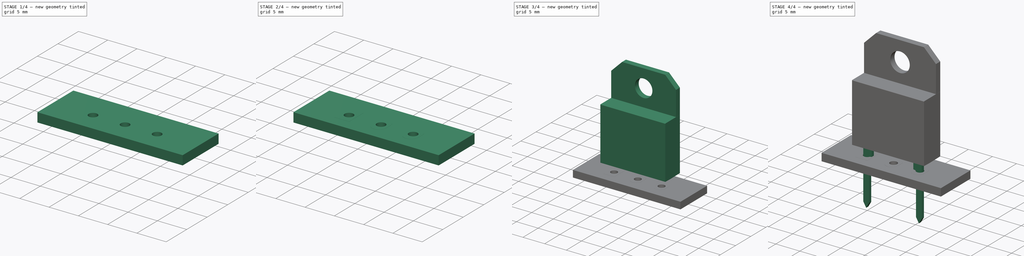
[diagram: build sequence overview — one tinted view per stage of 4, left to right]
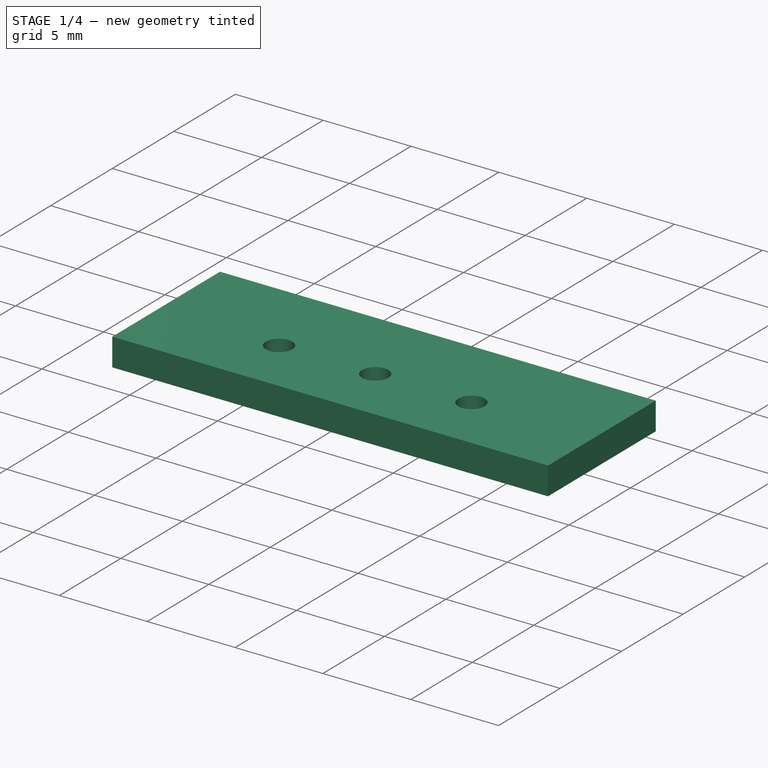
[diagram: stage 1 of 4 — iso view after this stage's code; geometry added in this stage tinted green]
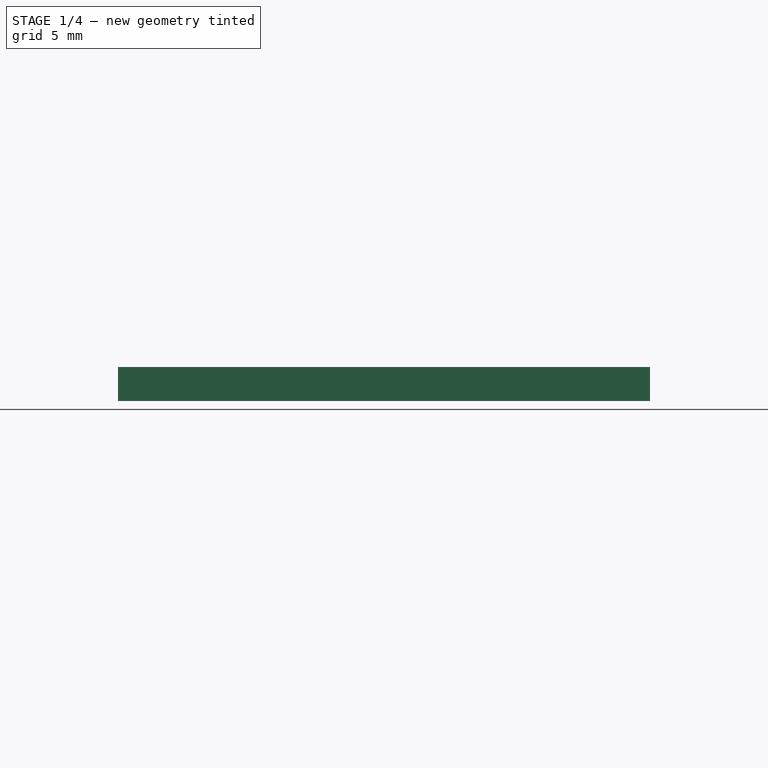
[diagram: stage 1 of 4 — front view after this stage's code; geometry added in this stage tinted green]
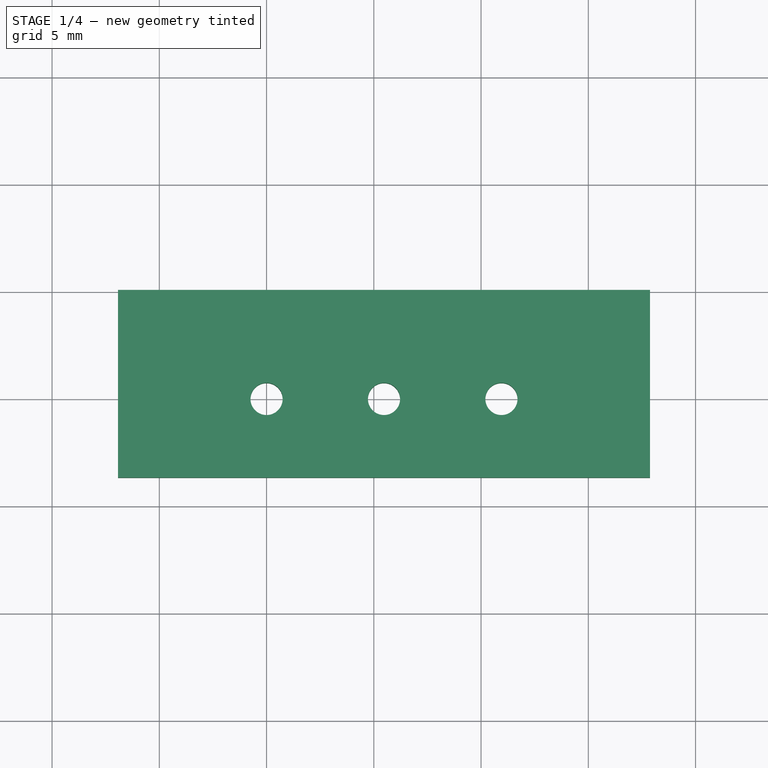
[diagram: stage 1 of 4 — top view after this stage's code; geometry added in this stage tinted green]
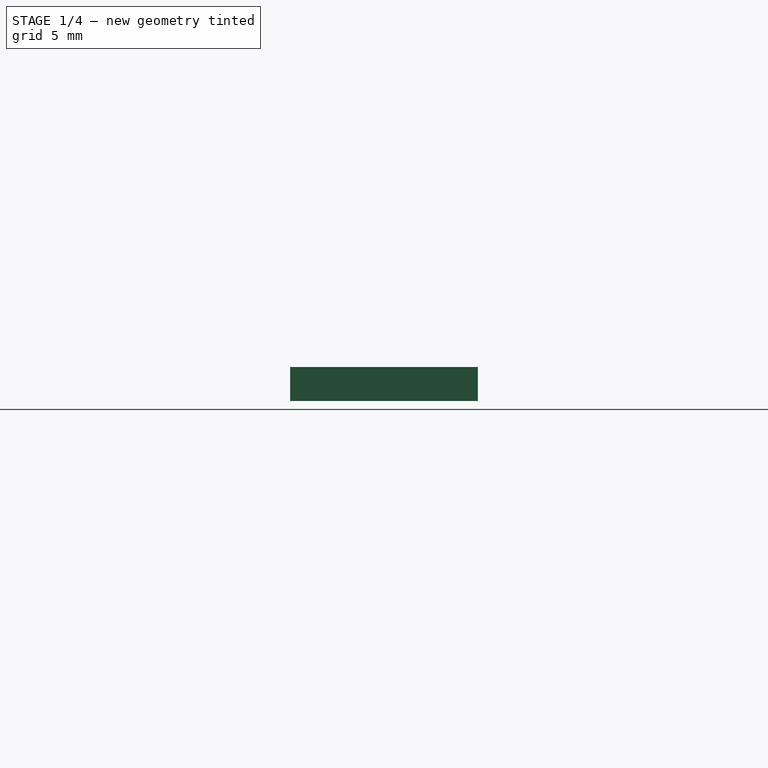
[diagram: stage 1 of 4 — right view after this stage's code; geometry added in this stage tinted green]
FCSTD DOCUMENT  (FreeCAD 0.16R6712 (Git))
Label: TO-218-2_Vertical
License: All rights reserved
LicenseURL: http://en.wikipedia.org/wiki/All_rights_reserved
objects: Part::FeaturePython×7, Sketcher::SketchObject×4, PartDesign::Pad×3, PartDesign::Pocket×1, Part::MultiFuse×1, App::DocumentObjectGroup×1
note: 20 computed .brp shape members not serialized (recipe doc carries the construction recipe); baked Part::Feature solids carry a one-line shape summary decoded from their .brp

FEATURE [Part::FeaturePython] THPs  label="PTHs"  # a2plus imported part (geometry in sourceFile) (typed FeaturePython)
  fixedPosition = true
FEATURE [Part::FeaturePython] newPCB  label="Pcb"  # a2plus imported part (geometry in sourceFile) (typed FeaturePython)
  fixedPosition = true
FEATURE [App::DocumentObjectGroup] TO_218_3_Vertical_fp
  Group = -> [FCrtYd_lines,FFab_lines,Filk_lines,TopPads,BotPads,THPs,newPCB]
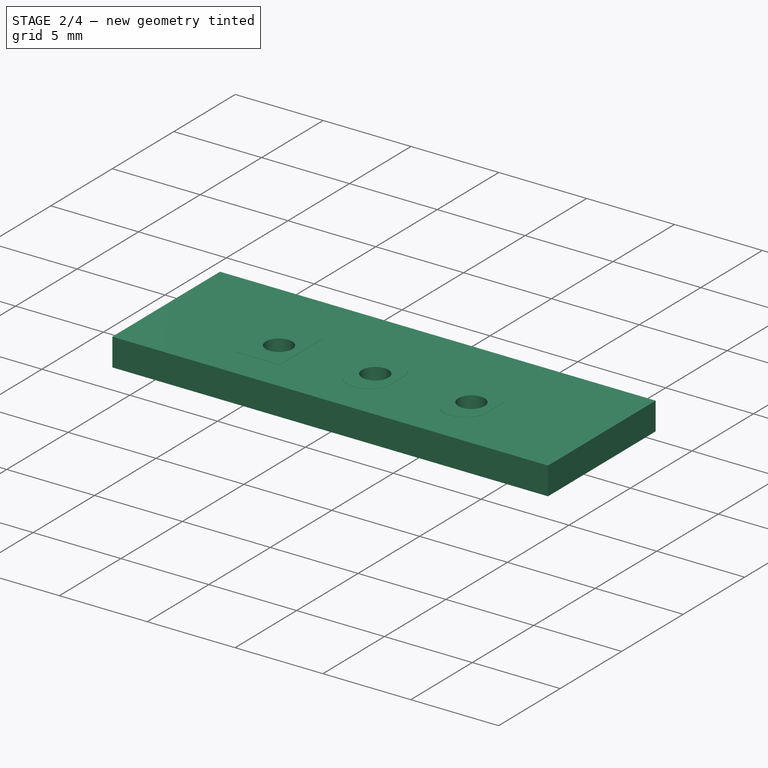
[diagram: stage 2 of 4 — iso view after this stage's code; geometry added in this stage tinted green]
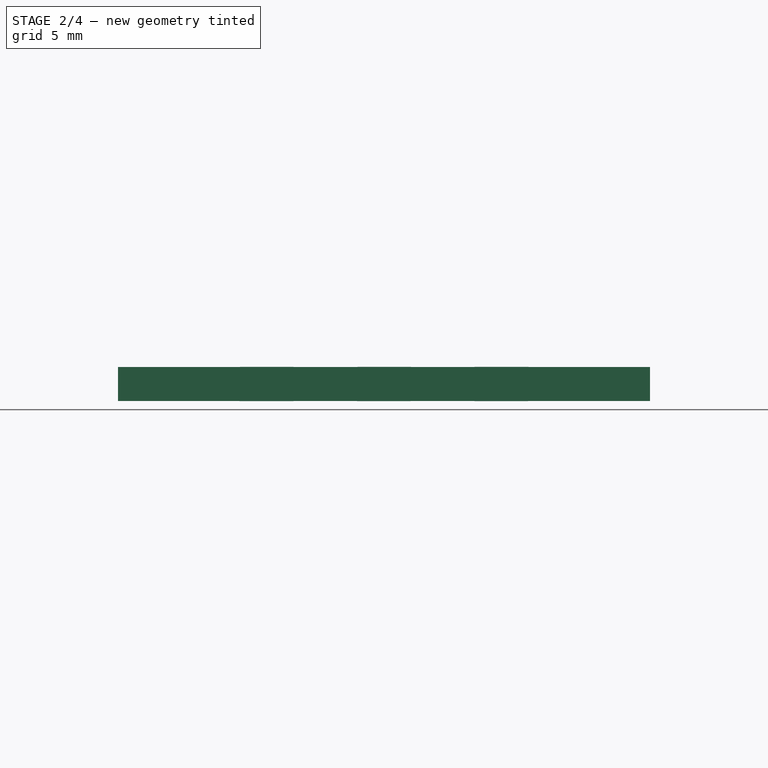
[diagram: stage 2 of 4 — front view after this stage's code; geometry added in this stage tinted green]
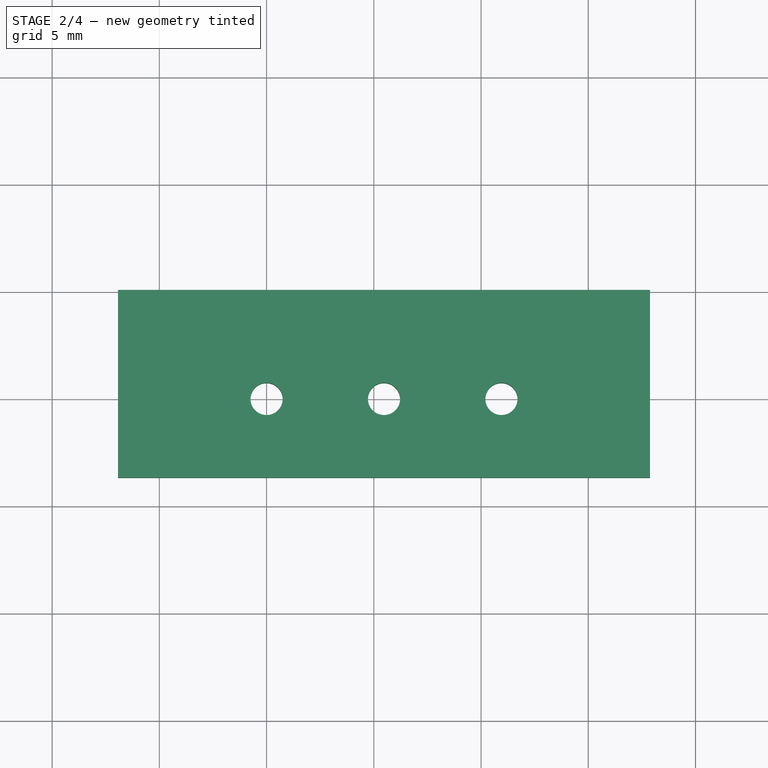
[diagram: stage 2 of 4 — top view after this stage's code; geometry added in this stage tinted green]
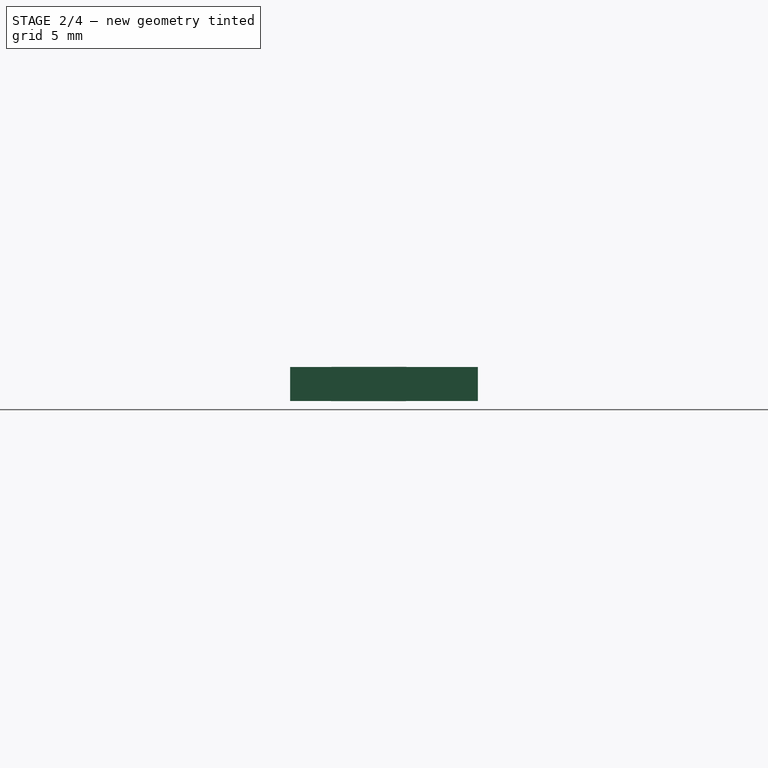
[diagram: stage 2 of 4 — right view after this stage's code; geometry added in this stage tinted green]
FEATURE [Part::FeaturePython] FCrtYd_lines  label="FCrtYd"  # a2plus imported part (geometry in sourceFile) (typed FeaturePython)
  fixedPosition = true
FEATURE [Part::FeaturePython] FFab_lines  label="FFab"  # a2plus imported part (geometry in sourceFile) (typed FeaturePython)
  fixedPosition = true
FEATURE [Part::FeaturePython] Filk_lines  label="FrontSilk"  # a2plus imported part (geometry in sourceFile) (typed FeaturePython)
  fixedPosition = true
FEATURE [Part::FeaturePython] TopPads  # a2plus imported part (geometry in sourceFile) (typed FeaturePython)
  fixedPosition = true
FEATURE [Part::FeaturePython] BotPads  # a2plus imported part (geometry in sourceFile) (typed FeaturePython)
  fixedPosition = true
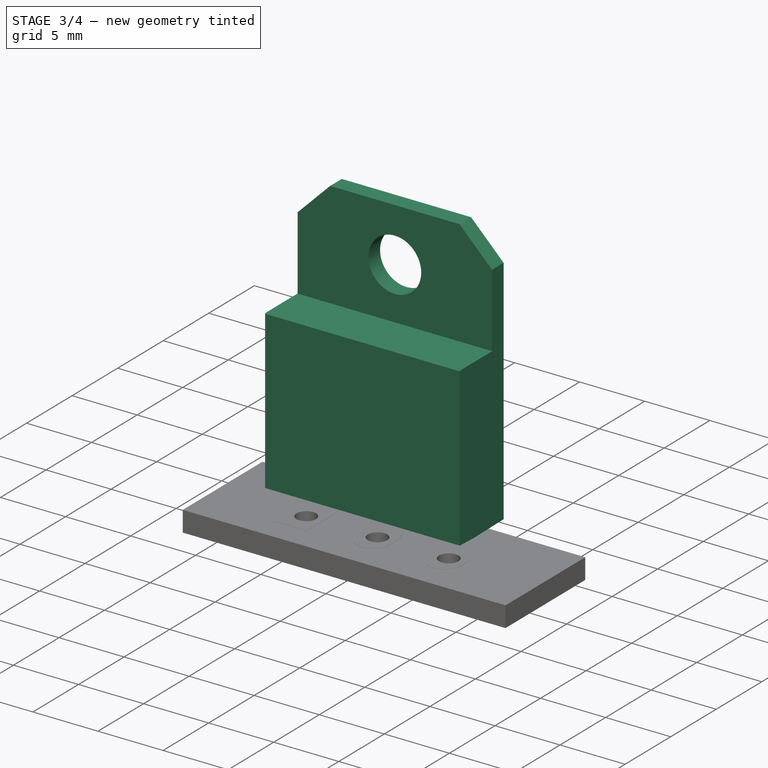
[diagram: stage 3 of 4 — iso view after this stage's code; geometry added in this stage tinted green]
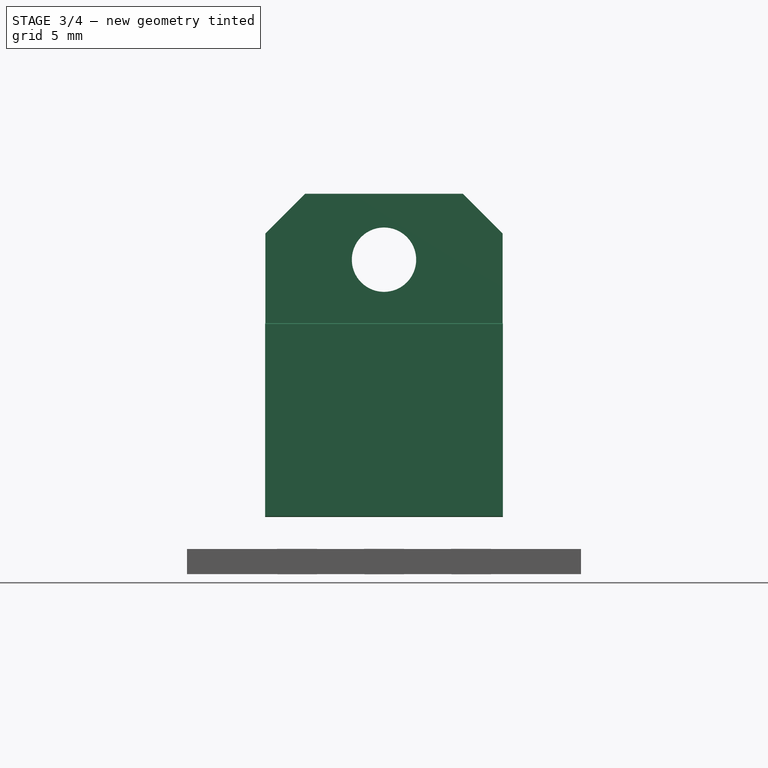
[diagram: stage 3 of 4 — front view after this stage's code; geometry added in this stage tinted green]
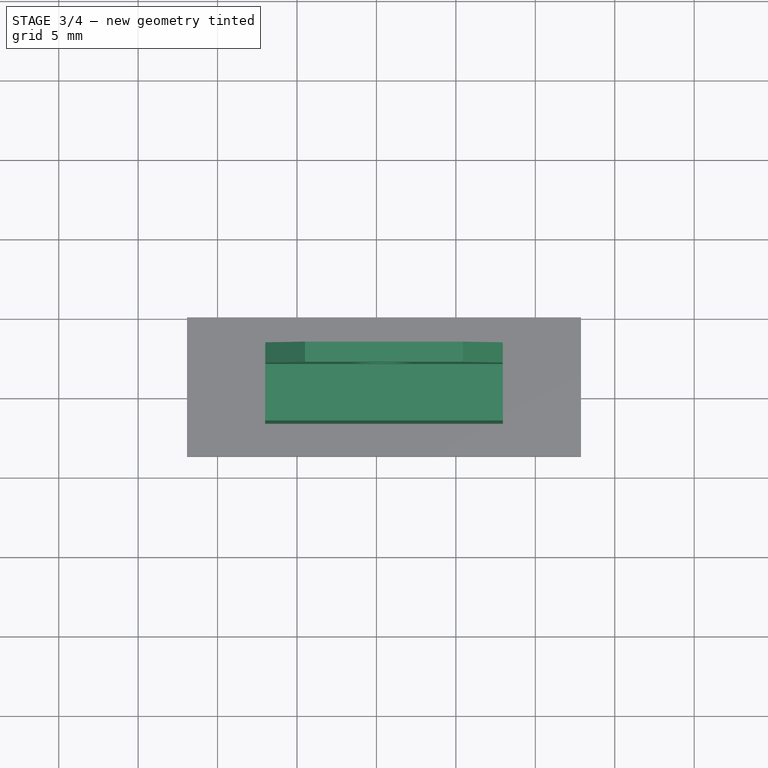
[diagram: stage 3 of 4 — top view after this stage's code; geometry added in this stage tinted green]
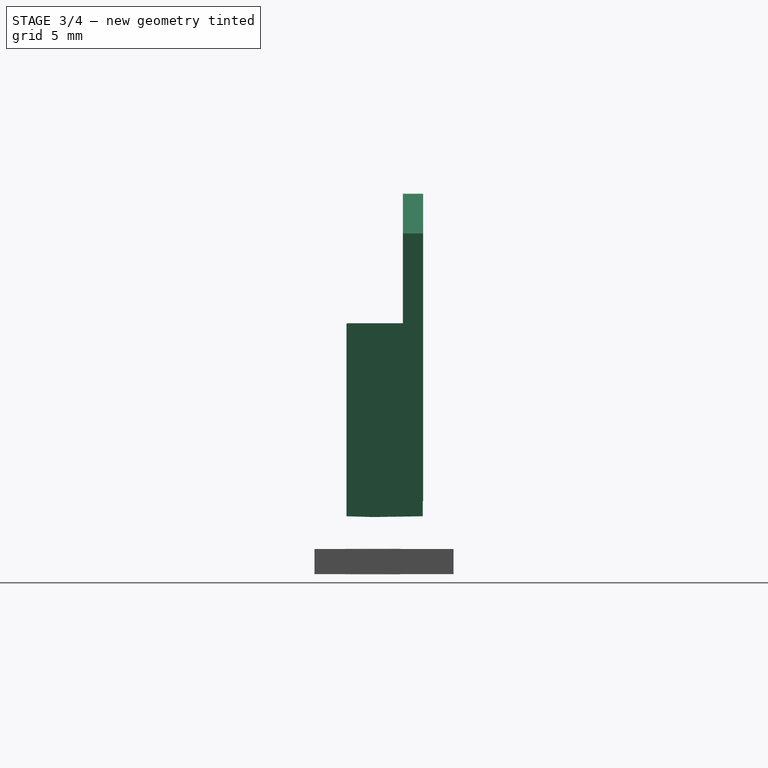
[diagram: stage 3 of 4 — right view after this stage's code; geometry added in this stage tinted green]
FEATURE [Sketcher::SketchObject] Sketch001
  Placement = pos=(5.475,0,0) rot=(0.57735,0.57735,0.57735;2.0944rad)
  expr: Constraints[13] = (2.92 + 2.41) / 2 + (0.61 + 0.36) / 2
  sketch-geometry (7):
    g0: LineSegment StartX=0 StartY=2 StartZ=0 EndX=-1.65 EndY=2.05 EndZ=0
    g1: LineSegment StartX=-1.65 StartY=2.05 StartZ=0 EndX=-1.65 EndY=14.15 EndZ=0
    g2: LineSegment StartX=-1.65 StartY=14.15 StartZ=0 EndX=-1.6 EndY=14.2 EndZ=0
    g3: LineSegment StartX=-1.6 StartY=14.2 StartZ=0 EndX=3.15 EndY=14.2 EndZ=0
    g4: LineSegment StartX=3.15 StartY=14.2 StartZ=0 EndX=3.15 EndY=2.05 EndZ=0
    g5: LineSegment StartX=3.15 StartY=2.05 StartZ=0 EndX=0 EndY=2 EndZ=0
    g6: LineSegment [constr] StartX=-1.65 StartY=2.05 StartZ=0 EndX=3.15 EndY=2.05 EndZ=0
  constraints (20):
    c: PointOnObject(g0,g-2)
    c: Coincident(g1,g0)
    c: Vertical(g1)
    c: Coincident(g2,g1)
    c: Horizontal(g3)
    c: Coincident(g4,g3)
    c: Vertical(g4)
    c: Coincident(g5,g4)
    c: Coincident(g5,g0)
    c: Coincident(g6,g0)
    c: Coincident(g6,g4)
    c: Horizontal(g6)
    c: Angle(g1,g2) = 2.35619
    c: DistanceX(g0,g4) = 3.15
    c: DistanceX(g1,g3) = 4.8
    c: DistanceY(g0,g4) = 0.05
    c: DistanceY(g0,g3) = 12.2
    c: Coincident(g2,g3)
    c: DistanceX(g1,g2) = 0.05
    c: DistanceY(g-1,g0) = 2
FEATURE [PartDesign::Pad] Pad001
  Length = 14.96
  Length2 = 100
  Midplane = true
  Placement = pos=(5.475,0,0) rot=(0.57735,0.57735,0.57735;2.0944rad)
  Sketch = -> Sketch001
  Type = 0
  expr: Length = (14.7 + 15.2) / 2 + 0.01
FEATURE [Sketcher::SketchObject] Sketch004
  Placement = pos=(0,0,3) rot=(0,0,1;0rad)
  expr: Constraints[13] = (5.4 + 5.55) / 2
  expr: Constraints[10] = 2.5 + (0.5 + 0.78) / 2 + 0.03
  expr: Constraints[9] = (1.17 + 1.37) / 2
  expr: Constraints[8] = (14.7 + 15.2) / 2 - 0.01
  sketch-geometry (5):
    g0: LineSegment StartX=-1.995 StartY=3.17 StartZ=0 EndX=12.945 EndY=3.17 EndZ=0
    g1: LineSegment StartX=12.945 StartY=3.17 StartZ=0 EndX=12.945 EndY=1.9 EndZ=0
    g2: LineSegment StartX=12.945 StartY=1.9 StartZ=0 EndX=-1.995 EndY=1.9 EndZ=0
    g3: LineSegment StartX=-1.995 StartY=1.9 StartZ=0 EndX=-1.995 EndY=3.17 EndZ=0
    g4: LineSegment [constr] StartX=0 StartY=3.17 StartZ=0 EndX=5.475 EndY=3.17 EndZ=0
  constraints (15):
    c: Coincident(g0,g1)
    c: Coincident(g1,g2)
    c: Coincident(g2,g3)
    c: Coincident(g3,g0)
    c: Horizontal(g0)
    c: Horizontal(g2)
    c: Vertical(g1)
    c: Vertical(g3)
    c: DistanceX(g0,g0) = 14.94
    c: DistanceY(g3,g3) = 1.27
    c: DistanceY(g-1,g0) = 3.17
    c: PointOnObject(g4,g-2)
    c: Horizontal(g4)
    c: DistanceX(g4,g4) = 5.475
    c: Symmetric(g0,g0,g4)
FEATURE [PartDesign::Pad] Pad002
  Length = 19.35
  Length2 = 100
  Placement = pos=(0,0,3) rot=(0,0,1;0rad)
  Sketch = -> Sketch004
  Type = 0
FEATURE [Sketcher::SketchObject] Sketch005
  ExternalGeometry = -> [Pad002]
  Placement = pos=(0,1.9,3) rot=(1,0,0;1.5708rad)
  Support = -> Pad002 [Face3]
  expr: Constraints[1] = 4.05 / 2
  expr: Constraints[2] = 20.35 - 16.2
  sketch-geometry (7):
    g0: Circle CenterX=5.475 CenterY=15.2 CenterZ=0 NormalX=0 NormalY=0 NormalZ=1 Radius=2.025
    g1: LineSegment StartX=0.505 StartY=19.35 StartZ=0 EndX=-1.995 EndY=16.85 EndZ=0
    g2: LineSegment StartX=-1.995 StartY=16.85 StartZ=0 EndX=-1.995 EndY=19.35 EndZ=0
    g3: LineSegment StartX=-1.995 StartY=19.35 StartZ=0 EndX=0.505 EndY=19.35 EndZ=0
    g4: LineSegment StartX=10.445 StartY=19.35 StartZ=0 EndX=12.945 EndY=16.85 EndZ=0
    g5: LineSegment StartX=12.945 StartY=16.85 StartZ=0 EndX=12.945 EndY=19.35 EndZ=0
    g6: LineSegment StartX=12.945 StartY=19.35 StartZ=0 EndX=10.445 EndY=19.35 EndZ=0
  constraints (20):
    c: DistanceX(g-1,g0) = 5.475
    c: Radius(g0) = 2.025
    c: DistanceY(g0,g-3) = 4.15
    c: PointOnObject(g1,g-3)
    c: Coincident(g2,g1)
    c: Coincident(g2,g-3)
    c: Vertical(g2)
    c: Coincident(g3,g2)
    c: Coincident(g3,g1)
    c: Angle(g1,g-3) = 2.35619
    c: DistanceY(g2,g2) = 2.5
    c: PointOnObject(g4,g-3)
    c: Coincident(g5,g4)
    c: Coincident(g5,g-3)
    c: Vertical(g5)
    c: Coincident(g6,g5)
    c: PointOnObject(g6,g-3)
    c: Coincident(g4,g6)
    c: Equal(g5,g2)
    c: Angle(g5,g4) = 0.785398
FEATURE [PartDesign::Pocket] Pocket
  Length = 5
  Placement = pos=(0,0,3) rot=(0,0,1;0rad)
  Sketch = -> Sketch005
  Type = 1
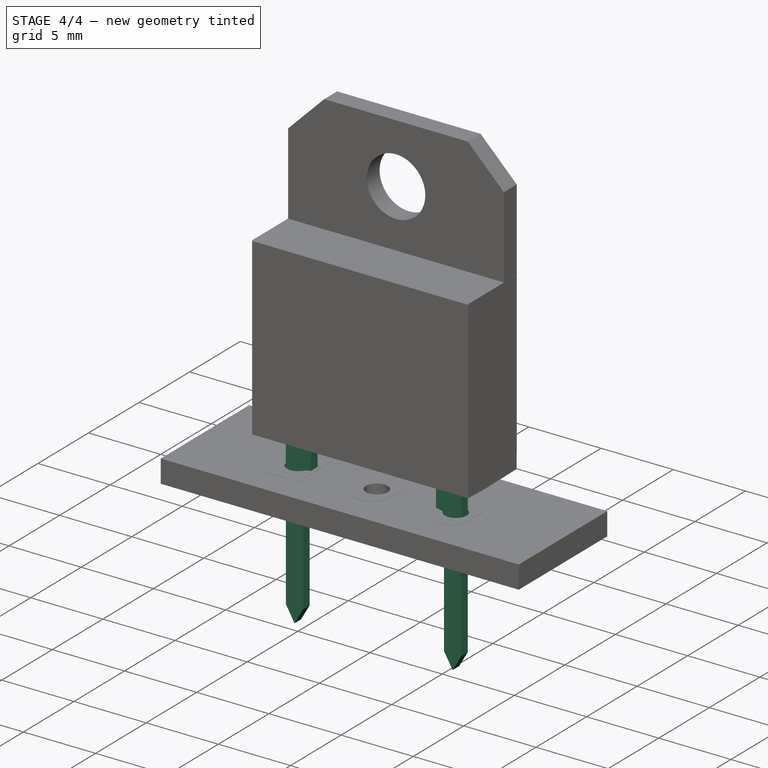
[diagram: stage 4 of 4 — iso view after this stage's code; geometry added in this stage tinted green]
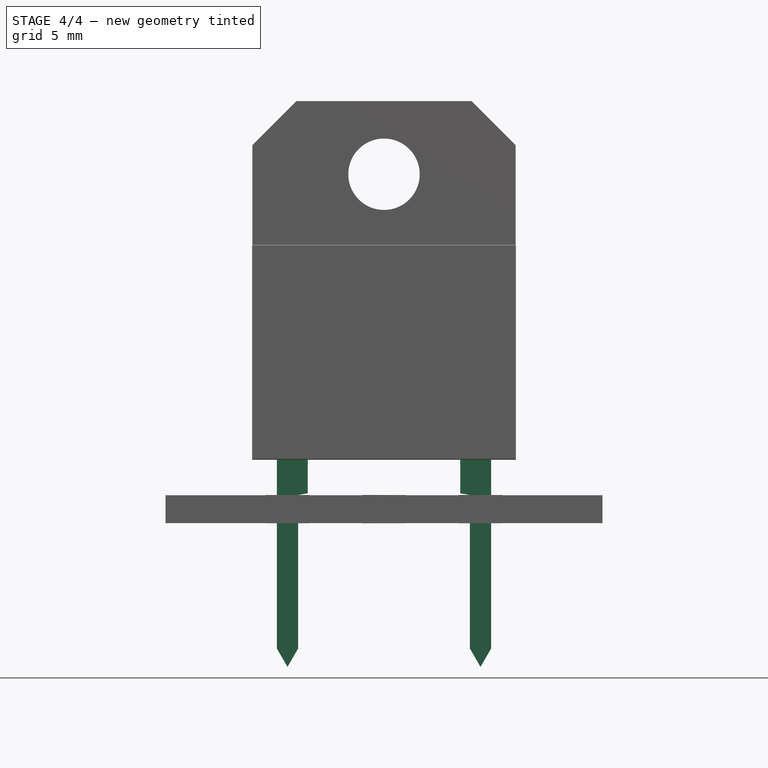
[diagram: stage 4 of 4 — front view after this stage's code; geometry added in this stage tinted green]
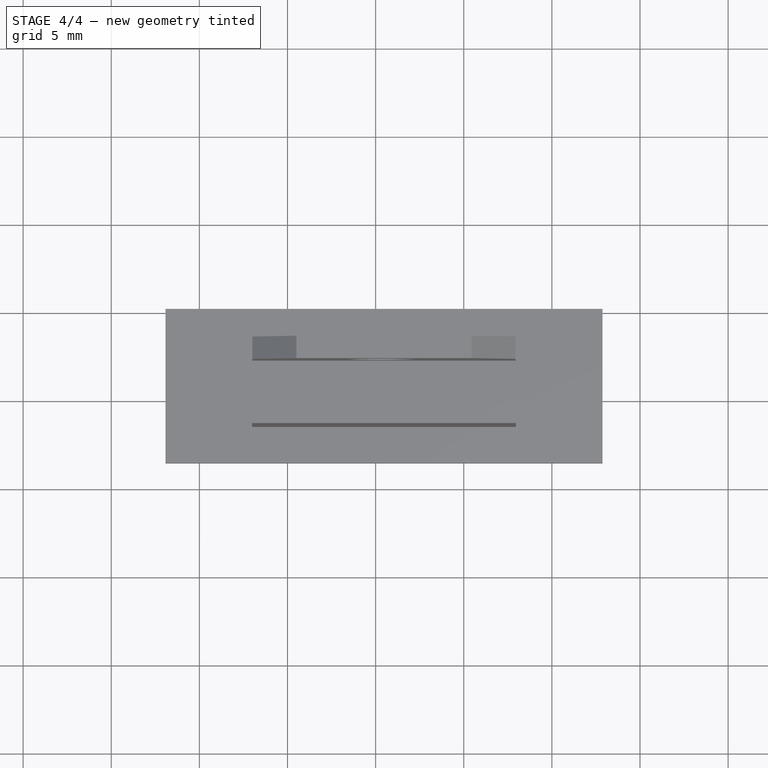
[diagram: stage 4 of 4 — top view after this stage's code; geometry added in this stage tinted green]
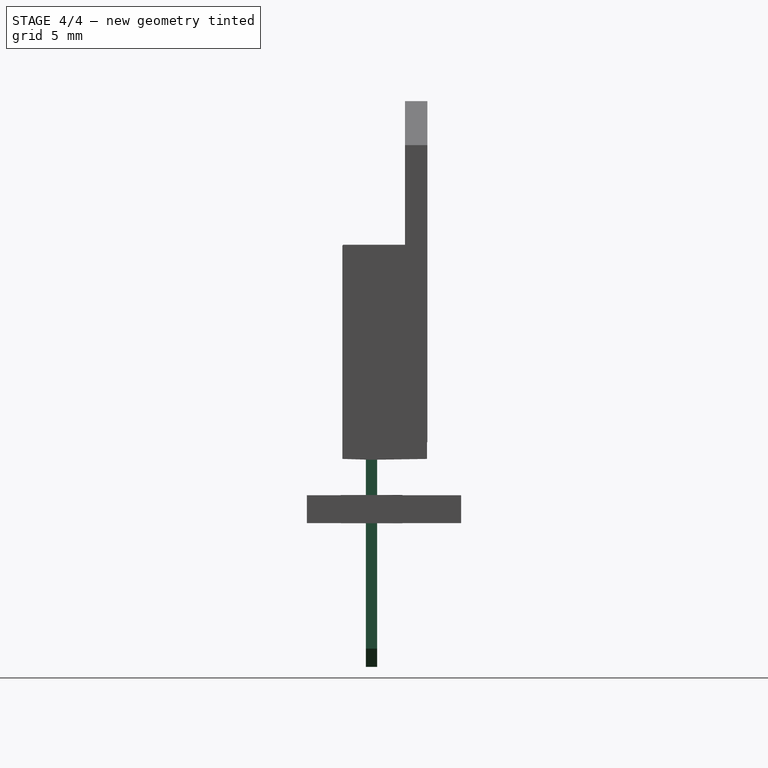
[diagram: stage 4 of 4 — right view after this stage's code; geometry added in this stage tinted green]
FEATURE [Sketcher::SketchObject] Sketch
  Placement = pos=(0,0,0) rot=(1,0,0;1.5708rad)
  expr: Constraints[29] = 3.23 + 0.5
  expr: Constraints[32] = (10.05 + 9.449999999999999) / 2
  sketch-geometry (33):
    g0: LineSegment [constr] StartX=-0.6 StartY=0 StartZ=0 EndX=0.6 EndY=0 EndZ=0
    g1: LineSegment [constr] StartX=-0.6 StartY=0.1 StartZ=0 EndX=1.15 EndY=0.1 EndZ=0
    g2: GeomPoint [constr] X=0 Y=0.1 Z=0
    g3: LineSegment [constr] StartX=-0.6 StartY=-8.71077 StartZ=0 EndX=0.6 EndY=-8.71077 EndZ=0
    g4: GeomPoint [constr] X=0 Y=-8.71077 Z=0
    g5: LineSegment StartX=-0.6 StartY=0 StartZ=0 EndX=-0.6 EndY=-8.71077 EndZ=0
    g6: LineSegment StartX=-0.6 StartY=-8.71077 StartZ=0 EndX=0 EndY=-9.75 EndZ=0
    g7: LineSegment StartX=0 StartY=-9.75 StartZ=0 EndX=0.6 EndY=-8.71077 EndZ=0
    g8: LineSegment StartX=0.6 StartY=-8.71077 StartZ=0 EndX=0.6 EndY=0 EndZ=0
    g9: LineSegment StartX=0.6 StartY=0 StartZ=0 EndX=1.15 EndY=0.1 EndZ=0
    g10: LineSegment StartX=1.15 StartY=0.1 StartZ=0 EndX=1.15 EndY=3.73 EndZ=0
    g11: LineSegment StartX=1.15 StartY=3.73 StartZ=0 EndX=-0.6 EndY=3.73 EndZ=0
    g12: LineSegment StartX=-0.6 StartY=3.73 StartZ=0 EndX=-0.6 EndY=0.1 EndZ=0
    g13: LineSegment [constr] StartX=0 StartY=-9.75 StartZ=0 EndX=0 EndY=0.1 EndZ=0
    g14: LineSegment [constr] StartX=10.35 StartY=0 StartZ=0 EndX=11.55 EndY=0 EndZ=0
    g15: LineSegment [constr] StartX=9.8 StartY=0.1 StartZ=0 EndX=11.55 EndY=0.1 EndZ=0
    g16: GeomPoint [constr] X=10.95 Y=0.1 Z=0
    g17: LineSegment [constr] StartX=10.35 StartY=-8.71077 StartZ=0 EndX=11.55 EndY=-8.71077 EndZ=0
    g18: GeomPoint [constr] X=10.95 Y=-8.71077 Z=0
    g19: LineSegment StartX=9.8 StartY=0.1 StartZ=0 EndX=10.35 EndY=0 EndZ=0
    g20: LineSegment StartX=10.35 StartY=0 StartZ=0 EndX=10.35 EndY=-8.71077 EndZ=0
    g21: LineSegment StartX=10.35 StartY=-8.71077 StartZ=0 EndX=10.95 EndY=-9.75 EndZ=0
    g22: LineSegment StartX=10.95 StartY=-9.75 StartZ=0 EndX=11.55 EndY=-8.71077 EndZ=0
    g23: LineSegment StartX=11.55 StartY=-8.71077 StartZ=0 EndX=11.55 EndY=0 EndZ=0
    g24: LineSegment StartX=11.55 StartY=0 StartZ=0 EndX=11.55 EndY=0.1 EndZ=0
    g25: LineSegment StartX=11.55 StartY=0.1 StartZ=0 EndX=11.55 EndY=3.73 EndZ=0
    g26: LineSegment StartX=11.55 StartY=3.73 StartZ=0 EndX=9.8 EndY=3.73 EndZ=0
    g27: LineSegment StartX=9.8 StartY=3.73 StartZ=0 EndX=9.8 EndY=0.1 EndZ=0
    g28: LineSegment [constr] StartX=10.95 StartY=-9.75 StartZ=0 EndX=10.95 EndY=0.1 EndZ=0
    g29: GeomPoint [constr] X=10.95 Y=0 Z=0
    g30: LineSegment [constr] StartX=0 StartY=-9.75 StartZ=0 EndX=10.95 EndY=-9.75 EndZ=0
    g31: LineSegment [constr] StartX=-0.6 StartY=3.73 StartZ=0 EndX=9.8 EndY=3.73 EndZ=0
    g32: LineSegment StartX=-0.6 StartY=0.1 StartZ=0 EndX=-0.6 EndY=0 EndZ=0
  constraints (80):
    c: PointOnObject(g0,g-1)
    c: Horizontal(g0)
    c: Symmetric(g0,g0,g-1)
    c: DistanceX(g0,g0) = 1.2
    c: Horizontal(g1)
    c: PointOnObject(g2,g-2)
    c: DistanceX(g1,g1) = 1.75
    c: Horizontal(g3)
    c: Equal(g0,g3) = 0.8
    c: PointOnObject(g4,g-2)
    c: Symmetric(g3,g3,g4)
    c: Coincident(g5,g0)
    c: Coincident(g5,g3)
    c: Coincident(g6,g3)
    c: Coincident(g7,g6)
    c: Coincident(g7,g3)
    c: PointOnObject(g6,g-2)
    c: Coincident(g8,g3)
    c: Coincident(g8,g0)
    c: Coincident(g9,g0)
    c: Coincident(g9,g1)
    c: Coincident(g10,g1)
    c: Vertical(g10)
    c: Coincident(g11,g10)
    c: Horizontal(g11)
    c: Coincident(g12,g11)
    c: Coincident(g12,g1)
    c: Vertical(g12)
    c: Angle(g8,g7) = 2.61799
    c: DistanceY(g-1,g11) = 3.73
    c: Coincident(g13,g6)
    c: Coincident(g13,g2)
    c: DistanceY(g6,g-1) = 9.75
    c: Horizontal(g14)
    c: Equal(g0,g14) = 0.8
    c: Horizontal(g15)
    c: Horizontal(g17)
    c: Equal(g14,g17) = 0.8
    c: Symmetric(g17,g17,g18)
    c: Coincident(g19,g15)
    c: Coincident(g19,g14)
    c: Coincident(g20,g14)
    c: Coincident(g20,g17)
    c: Coincident(g21,g17)
    c: Coincident(g22,g21)
    c: Coincident(g22,g17)
    c: Coincident(g23,g17)
    c: Coincident(g23,g14)
    c: Coincident(g24,g14)
    c: Coincident(g24,g15)
    c: Coincident(g25,g15)
    c: Vertical(g25)
    c: Coincident(g26,g25)
    c: Horizontal(g26)
    c: Coincident(g27,g26)
    c: Coincident(g27,g15)
    c: Vertical(g27)
    c: Angle(g23,g22) = 2.61799
    c: Coincident(g28,g21)
    c: Coincident(g28,g16)
    c: Vertical(g28)
    c: PointOnObject(g29,g28)
    c: Symmetric(g14,g14,g29)
    c: PointOnObject(g18,g28)
    c: Coincident(g30,g6)
    c: Coincident(g30,g21)
    c: Horizontal(g30)
    c: PointOnObject(g14,g-1)
    c: Coincident(g31,g11)
    c: Coincident(g31,g26)
    c: Horizontal(g31)
    c: Coincident(g32,g1)
    c: Coincident(g32,g0)
    c: Vertical(g32)
    c: PointOnObject(g2,g1)
    c: PointOnObject(g16,g15)
    c: Vertical(g24)
    c: Equal(g15,g1)
    c: DistanceY(g-1,g2) = 0.1
    c: DistanceX(g30,g30) = 10.95
FEATURE [PartDesign::Pad] Pad
  Length = 0.64
  Length2 = 100
  Midplane = true
  Placement = pos=(0,0,0) rot=(1,0,0;1.5708rad)
  Reversed = true
  Sketch = -> Sketch
  Type = 0
  expr: Length = (0.78 + 0.5) / 2
FEATURE [Part::MultiFuse] Pad001_mp_cp  label="TO-218-2_Vertical"
  Shapes = -> [Pad001,Pocket,Pad]
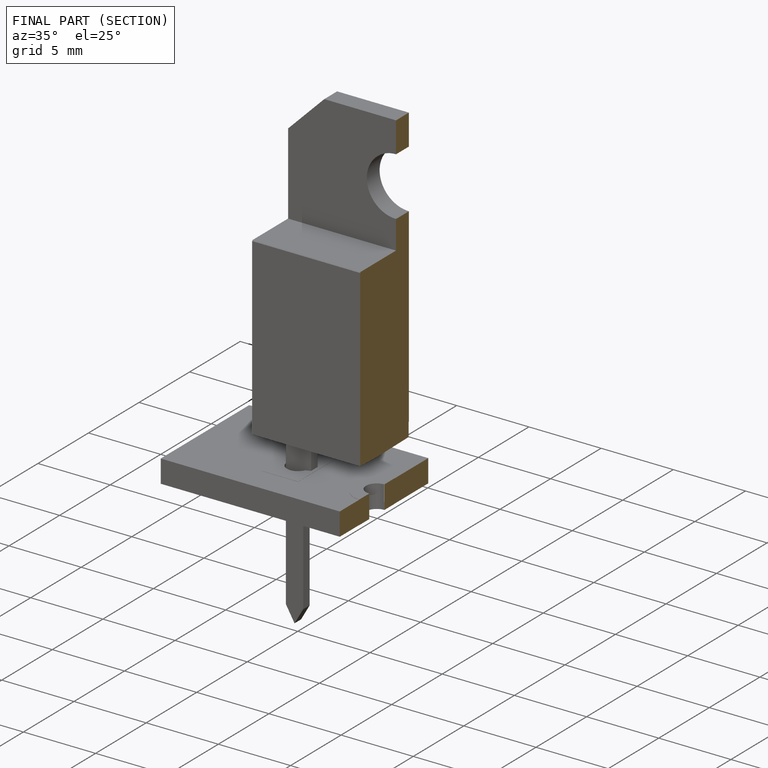
[diagram: finished part — half-section view (interior)]
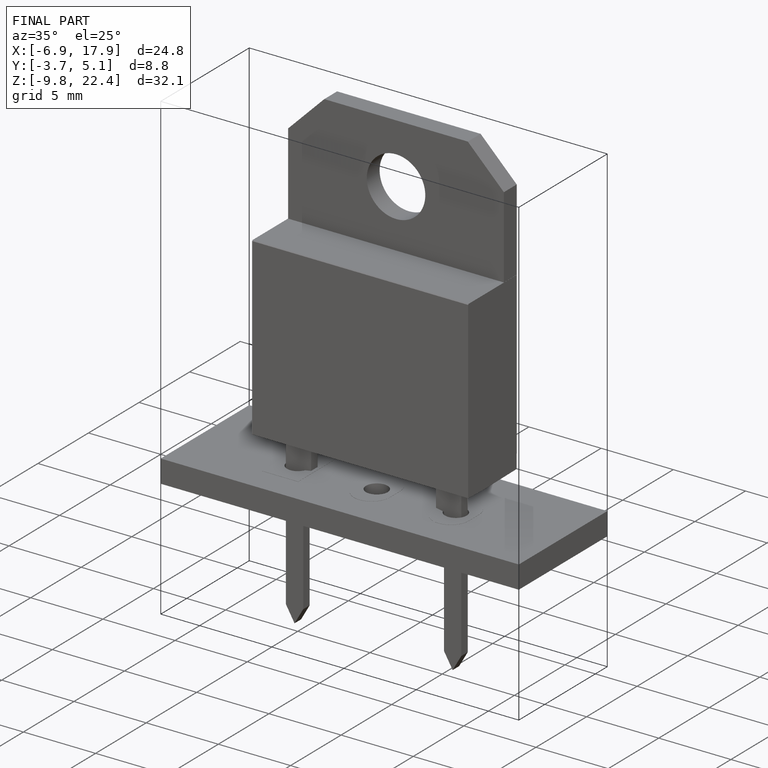
[diagram: finished part — iso view with bounding-box wireframe]
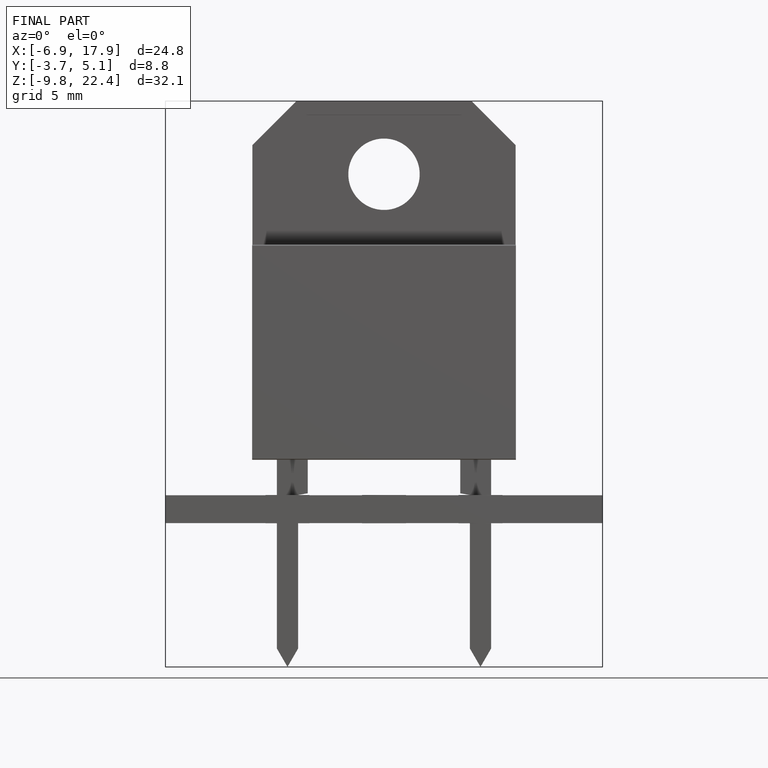
[diagram: finished part — front view with bounding-box wireframe]
